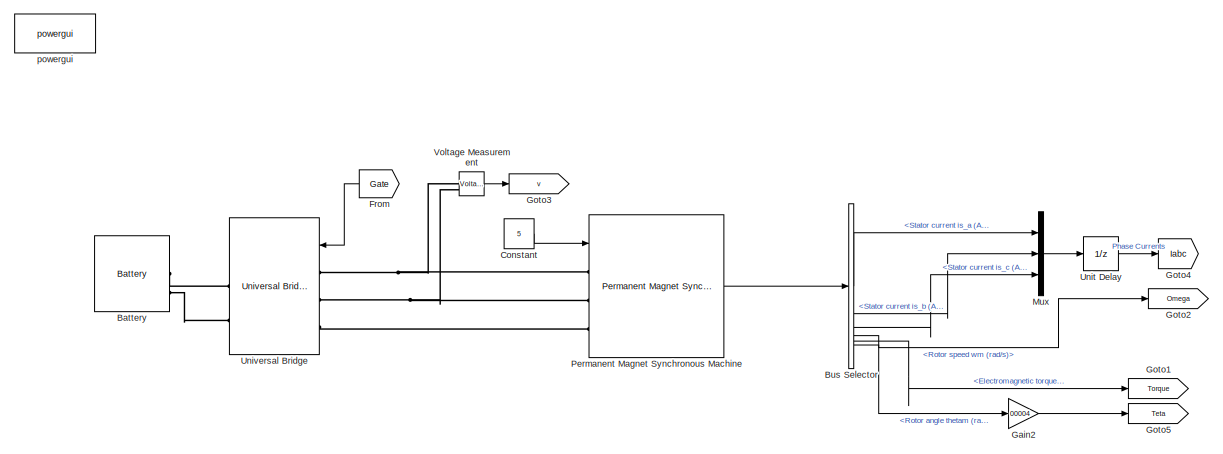
[diagram: root canvas - part 1/2, central region]
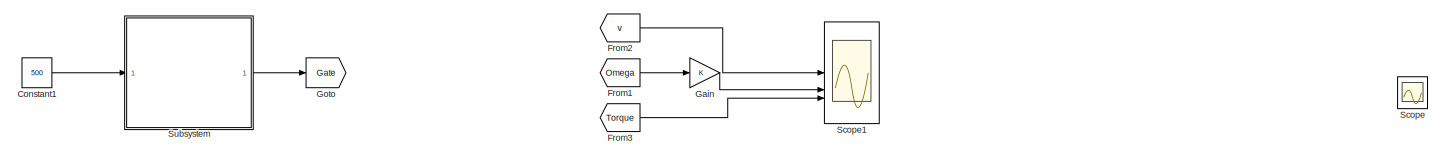
[diagram: root canvas - part 2/2, full width, bottom band]
MODEL slx_d42af97bb231
KIND model
CONFIG AbsTol = auto
CONFIG EnableMultiTasking = off
CONFIG FixedStep = auto
CONFIG MaxStep = auto
CONFIG MinStep = auto
CONFIG RelTol = 1e-3
CONFIG SampleTimeConstraint = Unconstrained
CONFIG SolverName = VariableStepAuto
CONFIG StartTime = 0.0
CONFIG StopTime = 10.0
BLOCK [Reference] Battery  REF=spsBatteryLib/Battery
  LibrarySourceBlock = sps_lib/Sources/Battery
  SourceBlock = spsBatteryLib/Battery
  SourceType = Battery
BLOCK [BusSelector] Bus Selector
  OutputSignals = Stator current is_a (A),Stator current is_b (A),Stator current is_c (A),Rotor speed wm (rad/s),Electromagnetic torque Te (N*m),Rotor angle thetam (rad)
BLOCK [Constant] Constant
  Value = 5
BLOCK [Constant] Constant1
  Value = 500
BLOCK [From] From
  GotoTag = Gate
  TagVisibility = global
BLOCK [From] From1
  GotoTag = Omega
  TagVisibility = global
BLOCK [From] From2
  GotoTag = v
  TagVisibility = global
BLOCK [From] From3
  GotoTag = Torque
  TagVisibility = global
BLOCK [Gain] Gain
BLOCK [Gain] Gain2
  Gain = 00004
BLOCK [Goto] Goto
  GotoTag = Gate
  TagVisibility = global
BLOCK [Goto] Goto1
  GotoTag = Torque
  TagVisibility = global
BLOCK [Goto] Goto2
  GotoTag = Omega
  TagVisibility = global
BLOCK [Goto] Goto3
  GotoTag = v
  TagVisibility = global
BLOCK [Goto] Goto4
  GotoTag = Iabc
  TagVisibility = global
BLOCK [Goto] Goto5
  GotoTag = Teta
  TagVisibility = global
BLOCK [Mux] Mux
  DisplayOption = bar
  Inputs = 3
BLOCK [Reference] Permanent Magnet Synchronous Machine  REF=spsPermanentMagnetSynchronousMachineLib/Permanent Magnet
Synchronous Machine
  SourceBlock = spsPermanentMagnetSynchronousMachineLib/Permanent Magnet\nSynchronous Machine
  SourceType = Permanent Magnet Synchronous Machine
BLOCK [Scope] Scope
  Floating = off
  NumInputPorts = 1
  ScopeSpecificationString = Simulink.scopes.TimeScopeBlockCfg('CurrentConfiguration', extmgr.ConfigurationSet(extmgr.Configuration('Core','General UI',true),extmgr.Configuration('Core','Source UI',true),extmgr.Configuration('Sources','WiredSimulink',true,'DataLoggingVariableName','ScopeData2'),extmgr.Configuration('Visuals','Time Domain',true),extmgr.Configuration('Tools','Plot Navigation',true),extmgr.Configuration('Tools',...<+40ch>
BLOCK [Scope] Scope1
  Floating = off
  NumInputPorts = 3
  ScopeSpecificationString = Simulink.scopes.TimeScopeBlockCfg('CurrentConfiguration', extmgr.ConfigurationSet(extmgr.Configuration('Core','General UI',true),extmgr.Configuration('Core','Source UI',true),extmgr.Configuration('Sources','WiredSimulink',true,'DataLoggingVariableName','ScopeData3'),extmgr.Configuration('Visuals','Time Domain',true,'SerializedDisplays',{struct('MinYLimReal','-10','MaxYLimReal','10','YLabelReal',''...<+1343ch>
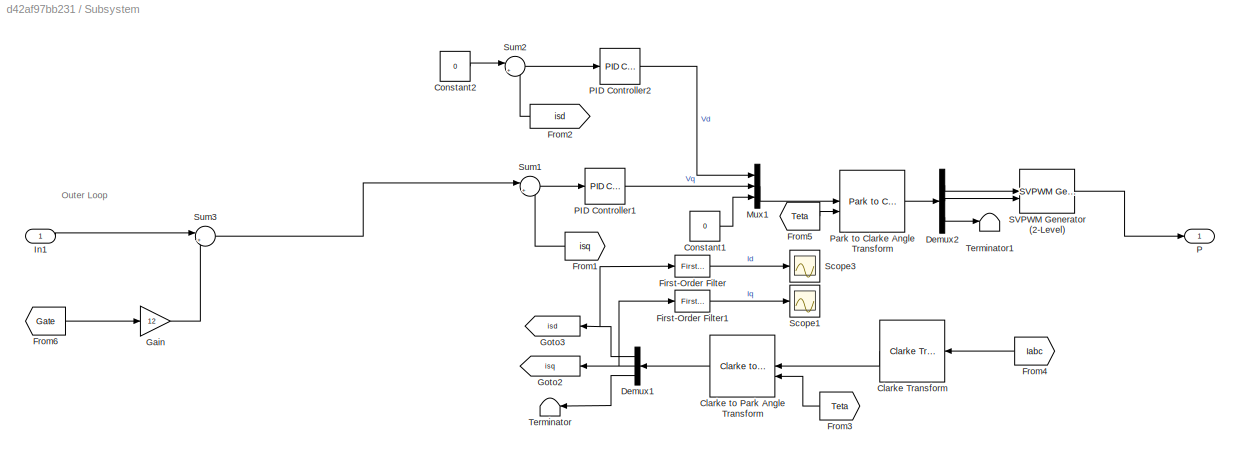
BLOCK [SubSystem] Subsystem
BLOCK [Reference] Subsystem/Clarke Transform  REF=eeTransforms/Clarke Transform
  SourceBlock = eeTransforms/Clarke Transform
  SourceType = Clarke Transform
BLOCK [Reference] Subsystem/Clarke to Park Angle Transform  REF=eeTransforms/Clarke to Park
Angle Transform
  SourceBlock = eeTransforms/Clarke to Park\nAngle Transform
  SourceType = Clarke to Park Angle Transform
BLOCK [Constant] Subsystem/Constant1
  Value = 0
BLOCK [Constant] Subsystem/Constant2
  Value = 0
BLOCK [Demux] Subsystem/Demux1
  Outputs = 3
BLOCK [Demux] Subsystem/Demux2
  Outputs = 3
BLOCK [Reference] Subsystem/First-Order Filter  REF=spsFirstOrderFilterLib/First-Order
Filter
  SourceBlock = spsFirstOrderFilterLib/First-Order\nFilter
  SourceType = First-Order Filter
BLOCK [Reference] Subsystem/First-Order Filter1  REF=spsFirstOrderFilterLib/First-Order
Filter
  SourceBlock = spsFirstOrderFilterLib/First-Order\nFilter
  SourceType = First-Order Filter
BLOCK [From] Subsystem/From1
  GotoTag = isq
  NameLocation = top
  TagVisibility = global
BLOCK [From] Subsystem/From2
  GotoTag = isd
  NameLocation = top
  TagVisibility = global
BLOCK [From] Subsystem/From3
  GotoTag = Teta
  TagVisibility = global
BLOCK [From] Subsystem/From4
  GotoTag = Iabc
  TagVisibility = global
BLOCK [From] Subsystem/From5
  GotoTag = Teta
  TagVisibility = global
BLOCK [From] Subsystem/From6
  GotoTag = Gate
  NameLocation = top
  TagVisibility = global
BLOCK [Gain] Subsystem/Gain
  Gain = 12
BLOCK [Goto] Subsystem/Goto2
  GotoTag = isq
  TagVisibility = global
BLOCK [Goto] Subsystem/Goto3
  GotoTag = isd
  TagVisibility = global
BLOCK [Inport] Subsystem/In1
BLOCK [Mux] Subsystem/Mux1
  DisplayOption = bar
  Inputs = 3
BLOCK [Outport] Subsystem/P
BLOCK [Reference] Subsystem/PID Controller1  REF=slpidlib/PID Controller
  SourceBlock = slpidlib/PID Controller
  SourceType = PID 1dof
BLOCK [Reference] Subsystem/PID Controller2  REF=slpidlib/PID Controller
  SourceBlock = slpidlib/PID Controller
  SourceType = PID 1dof
BLOCK [Reference] Subsystem/Park to Clarke Angle Transform  REF=eeTransforms/Park to Clarke
Angle Transform
  SourceBlock = eeTransforms/Park to Clarke\nAngle Transform
  SourceType = Park to Clarke Angle Transform
BLOCK [Reference] Subsystem/SVPWM Generator (2-Level)  REF=spsSVPWMGenerator2LevelLib/SVPWM Generator
(2-Level)
  LibrarySourceBlock = sps_lib/Power Electronics/Power Electronics Control/SVPWM Generator\n(2-Level)
  SourceBlock = spsSVPWMGenerator2LevelLib/SVPWM Generator\n(2-Level)
  SourceType = SVPWM Generator (2-Level)
BLOCK [Scope] Subsystem/Scope1
  Floating = off
  NumInputPorts = 1
  ScopeSpecificationString = Simulink.scopes.TimeScopeBlockCfg('CurrentConfiguration', extmgr.ConfigurationSet(extmgr.Configuration('Core','General UI',true,'FigureColor',[1 1 1]),extmgr.Configuration('Core','Source UI',true),extmgr.Configuration('Sources','WiredSimulink',true,'DataLoggingVariableName','ScopeData1','SampleTime','0.001'),extmgr.Configuration('Visuals','Time Domain',true,'SerializedDisplays',{struct('MinYLimRea...<+1543ch>
BLOCK [Scope] Subsystem/Scope3
  Floating = off
  NumInputPorts = 1
  ScopeSpecificationString = Simulink.scopes.TimeScopeBlockCfg('CurrentConfiguration', extmgr.ConfigurationSet(extmgr.Configuration('Core','General UI',true,'FigureColor',[1 1 1]),extmgr.Configuration('Core','Source UI',true),extmgr.Configuration('Sources','WiredSimulink',true,'SampleTime','0.001'),extmgr.Configuration('Visuals','Time Domain',true,'SerializedDisplays',{struct('MinYLimReal','-174.99796','MaxYLimReal','144.9741...<+1502ch>
BLOCK [Sum] Subsystem/Sum1
  Inputs = |+-
BLOCK [Sum] Subsystem/Sum2
  Inputs = |+-
BLOCK [Sum] Subsystem/Sum3
  Inputs = |+-
BLOCK [Terminator] Subsystem/Terminator
BLOCK [Terminator] Subsystem/Terminator1
BLOCK [UnitDelay] Unit Delay
  HasFrameUpgradeWarning = on
  SampleTime = -1
BLOCK [Reference] Universal Bridge  REF=spsUniversalBridgeLib/Universal Bridge
  SourceBlock = spsUniversalBridgeLib/Universal Bridge
  SourceType = Universal Bridge
BLOCK [Reference] Voltage Measurement  REF=spsVoltageMeasurementLib/Voltage Measurement
  LibrarySourceBlock = sps_lib/Sensors and Measurements/Voltage Measurement
  SourceBlock = spsVoltageMeasurementLib/Voltage Measurement
  SourceType = Voltage Measurement
  UserDataPersistent = on
BLOCK [Reference] powergui  REF=spspowerguiLib/powergui
  LibrarySourceBlock = sps_lib/powergui
  Priority = 1
  SourceBlock = spspowerguiLib/powergui
  SourceType = PSB option menu block
ANNOTATION Subsystem: Outer Loop
LINE Bus Selector:1 -> Mux:1
LINE Bus Selector:2 -> Mux:2
LINE Bus Selector:3 -> Mux:3
LINE Bus Selector:4 -> Goto2:1
LINE Bus Selector:5 -> Goto1:1
LINE Bus Selector:6 -> Gain2:1
LINE Constant1:1 -> Subsystem:1
LINE Constant:1 -> Permanent Magnet Synchronous Machine:1
LINE From1:1 -> Gain:1
LINE From2:1 -> Scope1:1
LINE From3:1 -> Scope1:3
LINE From:1 -> Universal Bridge:1
LINE Gain2:1 -> Goto5:1
LINE Gain:1 -> Scope1:2
LINE Mux:1 -> Unit Delay:1
LINE Permanent Magnet Synchronous Machine:1 -> Bus Selector:1
LINE Subsystem/Clarke Transform:1 -> Subsystem/Clarke to Park Angle Transform:1
LINE Subsystem/Clarke to Park Angle Transform:1 -> Subsystem/Demux1:1
LINE Subsystem/Constant1:1 -> Subsystem/Mux1:3
LINE Subsystem/Constant2:1 -> Subsystem/Sum2:1
NET Subsystem/Demux1:1 -> Subsystem/First-Order Filter:1, Subsystem/Goto3:1
NET Subsystem/Demux1:2 -> Subsystem/First-Order Filter1:1, Subsystem/Goto2:1
LINE Subsystem/Demux1:3 -> Subsystem/Terminator:1
LINE Subsystem/Demux2:1 -> Subsystem/SVPWM Generator (2-Level):1
LINE Subsystem/Demux2:2 -> Subsystem/SVPWM Generator (2-Level):2
LINE Subsystem/Demux2:3 -> Subsystem/Terminator1:1
LINE Subsystem/First-Order Filter1:1 -> Subsystem/Scope1:1
LINE Subsystem/First-Order Filter:1 -> Subsystem/Scope3:1
LINE Subsystem/From1:1 -> Subsystem/Sum1:2
LINE Subsystem/From2:1 -> Subsystem/Sum2:2
LINE Subsystem/From3:1 -> Subsystem/Clarke to Park Angle Transform:2
LINE Subsystem/From4:1 -> Subsystem/Clarke Transform:1
LINE Subsystem/From5:1 -> Subsystem/Park to Clarke Angle Transform:2
LINE Subsystem/From6:1 -> Subsystem/Gain:1
LINE Subsystem/Gain:1 -> Subsystem/Sum3:2
LINE Subsystem/In1:1 -> Subsystem/Sum3:1
LINE Subsystem/Mux1:1 -> Subsystem/Park to Clarke Angle Transform:1
LINE Subsystem/PID Controller1:1 -> Subsystem/Mux1:2
LINE Subsystem/PID Controller2:1 -> Subsystem/Mux1:1
LINE Subsystem/Park to Clarke Angle Transform:1 -> Subsystem/Demux2:1
LINE Subsystem/SVPWM Generator (2-Level):1 -> Subsystem/P:1
LINE Subsystem/Sum1:1 -> Subsystem/PID Controller1:1
LINE Subsystem/Sum2:1 -> Subsystem/PID Controller2:1
LINE Subsystem/Sum3:1 -> Subsystem/Sum1:1
LINE Subsystem:1 -> Goto:1
LINE Unit Delay:1 -> Goto4:1
LINE Voltage Measurement:1 -> Goto3:1
PLINE Battery:LConn1 -- Universal Bridge:RConn1
PLINE Battery:LConn2 -- Universal Bridge:RConn2
PNET net1: Permanent Magnet Synchronous Machine:LConn1 -- Universal Bridge:LConn1 -- Voltage Measurement:LConn1
PNET net2: Permanent Magnet Synchronous Machine:LConn2 -- Universal Bridge:LConn2 -- Voltage Measurement:LConn2
PLINE Permanent Magnet Synchronous Machine:LConn3 -- Universal Bridge:LConn3
note: NET lines group one-source signal fan-out (src -> all destinations, sorted); 1:1 wires keep LINE; PNET lines group multi-terminal physical nets as a canonical sorted terminal list (undirected conserving connections); 2-terminal nets keep the pairwise PLINE form
